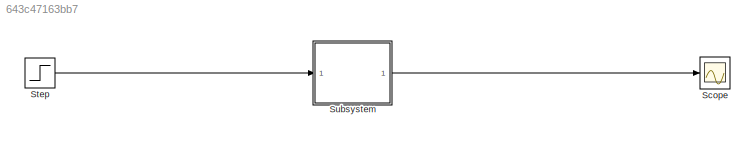
MODEL slx_643c47163bb7
KIND model
CONFIG AbsTol = auto
CONFIG EnableMultiTasking = off
CONFIG FixedStep = auto
CONFIG MaxStep = auto
CONFIG MinStep = auto
CONFIG RelTol = 1e-3
CONFIG SampleTimeConstraint = Unconstrained
CONFIG SolverName = VariableStepAuto
CONFIG StartTime = 0.0
CONFIG StopTime = 120
BLOCK [Scope] Scope
  Floating = off
  NumInputPorts = 1
  Ports = [1]
  ScopeSpecificationString = Simulink.scopes.TimeScopeBlockCfg('CurrentConfiguration', extmgr.ConfigurationSet(extmgr.Configuration('Core','General UI',true),extmgr.Configuration('Core','Source UI',true),extmgr.Configuration('Sources','WiredSimulink',true),extmgr.Configuration('Visuals','Time Domain',true,'SerializedDisplays',{struct('MinYLimReal','-68.0446','MaxYLimReal','612.40142','YLabelReal','','MinYLimMag','0.00000','Ma...<+1337ch>
BLOCK [Step] Step
  After = u
  SampleTime = 0
  Time = 0
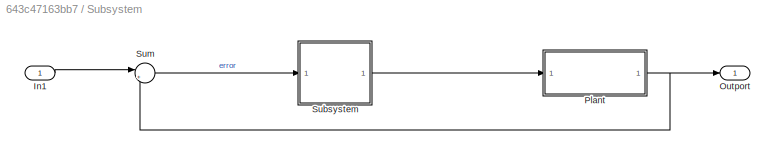
BLOCK [SubSystem] Subsystem
  Ports = [1, 1]
  RequestExecContextInheritance = off
BLOCK [Inport] Subsystem/In1
BLOCK [Outport] Subsystem/Outport
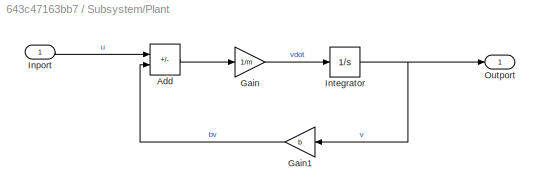
BLOCK [SubSystem] Subsystem/Plant
  Ports = [1, 1]
  RequestExecContextInheritance = off
BLOCK [Sum] Subsystem/Plant/Add
  IconShape = rectangular
  Inputs = +-
  Ports = [2, 1]
BLOCK [Gain] Subsystem/Plant/Gain
  Gain = 1/m
BLOCK [Gain] Subsystem/Plant/Gain1
  Gain = b
BLOCK [Inport] Subsystem/Plant/Inport
BLOCK [Integrator] Subsystem/Plant/Integrator
  Ports = [1, 1]
BLOCK [Outport] Subsystem/Plant/Outport
BLOCK [ModelReference] Subsystem/Subsystem
  ModelNameDialog = Subsystem
  ModelReferenceVersion = 1.12
  Ports = [1, 1]
BLOCK [Sum] Subsystem/Sum
  Inputs = |+-
  Ports = [2, 1]
LINE Step:1 -> Subsystem:1
LINE Subsystem/In1:1 -> Subsystem/Sum:1
LINE Subsystem/Plant/Add:1 -> Subsystem/Plant/Gain:1
LINE Subsystem/Plant/Gain1:1 -> Subsystem/Plant/Add:2
LINE Subsystem/Plant/Gain:1 -> Subsystem/Plant/Integrator:1
LINE Subsystem/Plant/Inport:1 -> Subsystem/Plant/Add:1
NET Subsystem/Plant/Integrator:1 -> Subsystem/Plant/Gain1:1, Subsystem/Plant/Outport:1
NET Subsystem/Plant:1 -> Subsystem/Outport:1, Subsystem/Sum:2
LINE Subsystem/Subsystem:1 -> Subsystem/Plant:1
LINE Subsystem/Sum:1 -> Subsystem/Subsystem:1
LINE Subsystem:1 -> Scope:1
note: NET lines group one-source signal fan-out (src -> all destinations, sorted); 1:1 wires keep LINE
